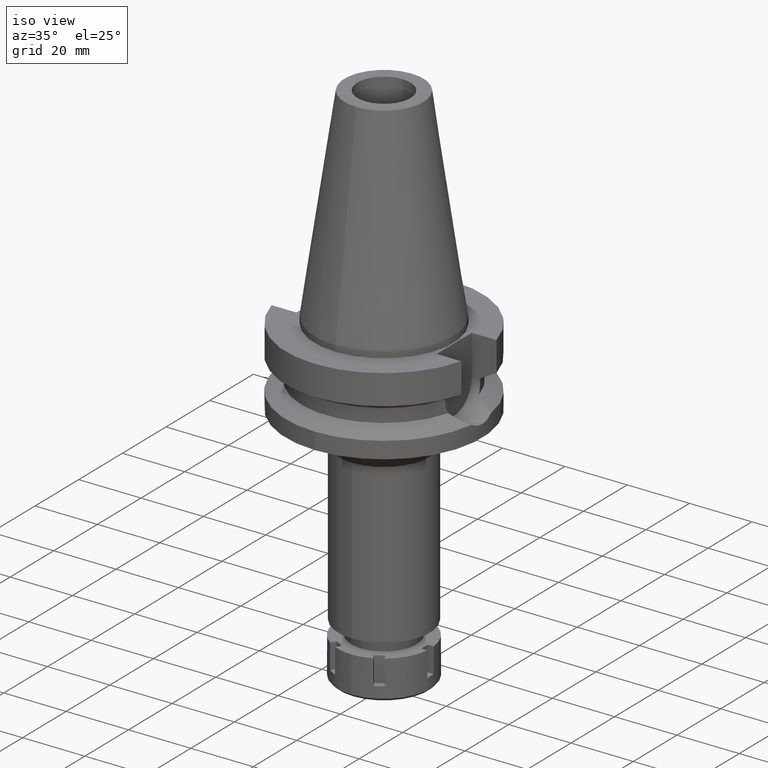
[diagram: clean part render]
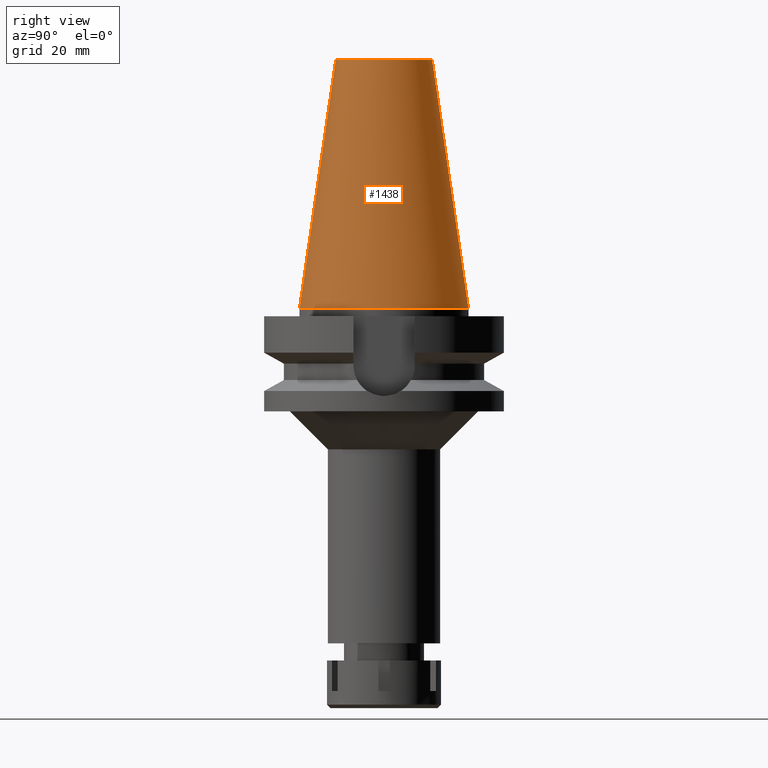
[diagram: tour spotlight — one face highlighted and labeled with its STEP entity id]
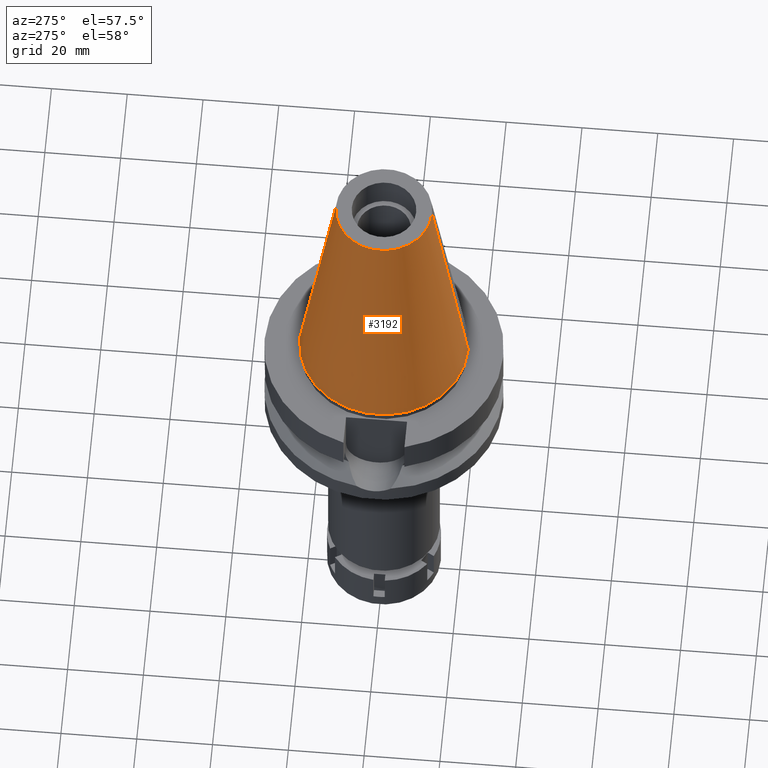
[diagram: tour spotlight — one face highlighted and labeled with its STEP entity id]
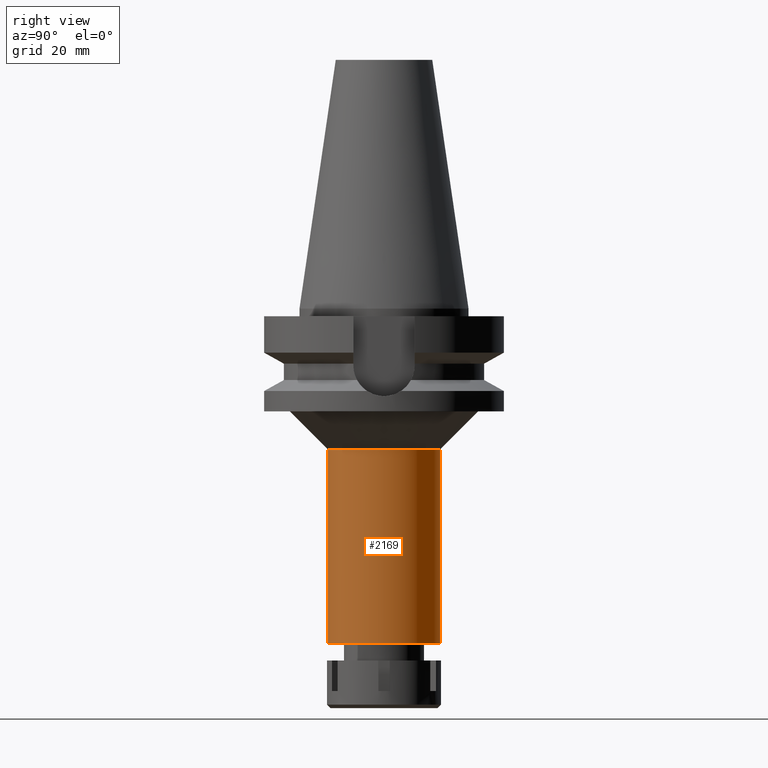
[diagram: tour spotlight — one face highlighted and labeled with its STEP entity id]
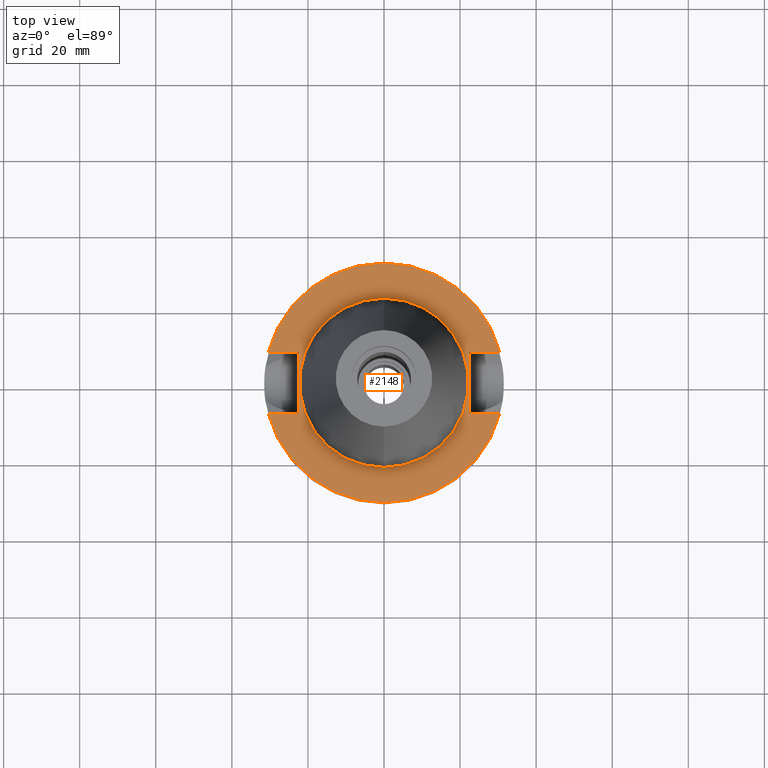
[diagram: tour spotlight — one face highlighted and labeled with its STEP entity id]
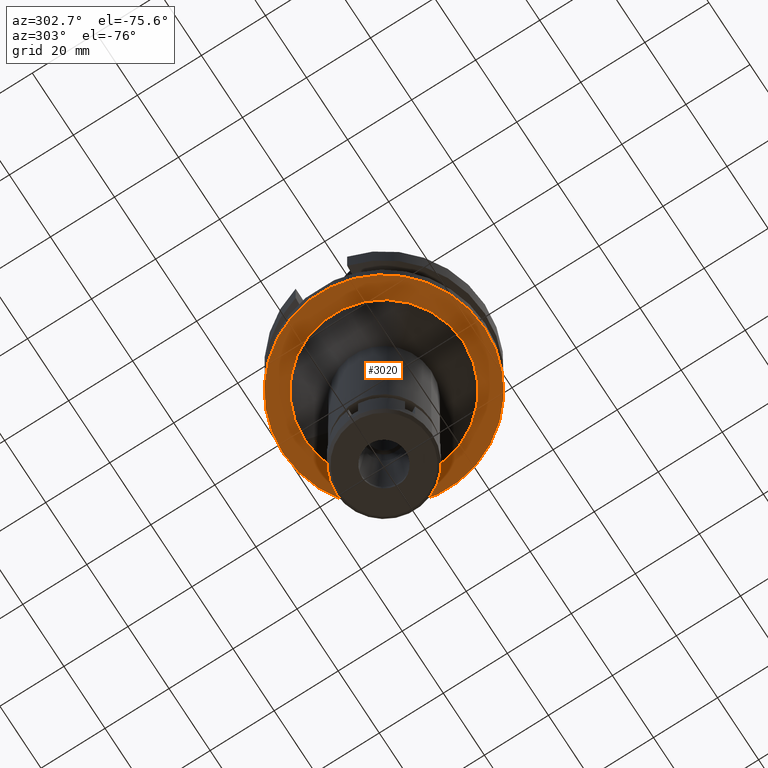
[diagram: tour spotlight — one face highlighted and labeled with its STEP entity id]
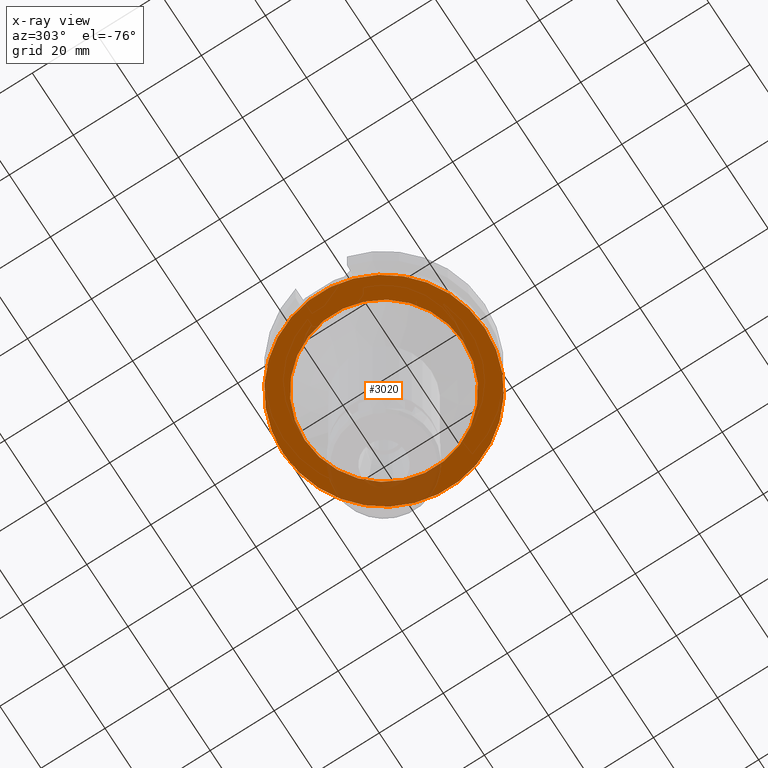
[diagram: x-ray of the same camera — body ghosted, this tour face saturated]
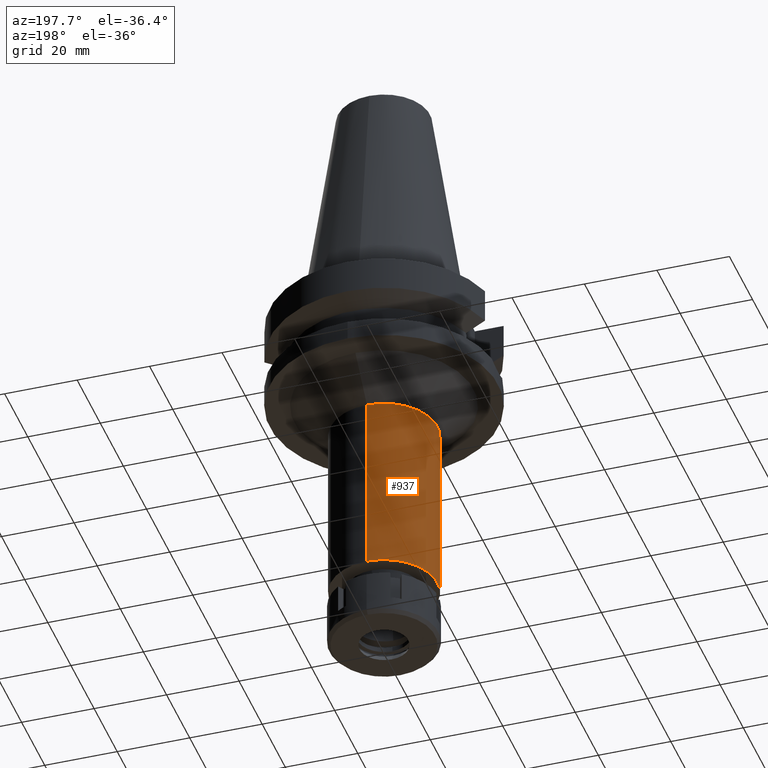
[diagram: tour spotlight — one face highlighted and labeled with its STEP entity id]
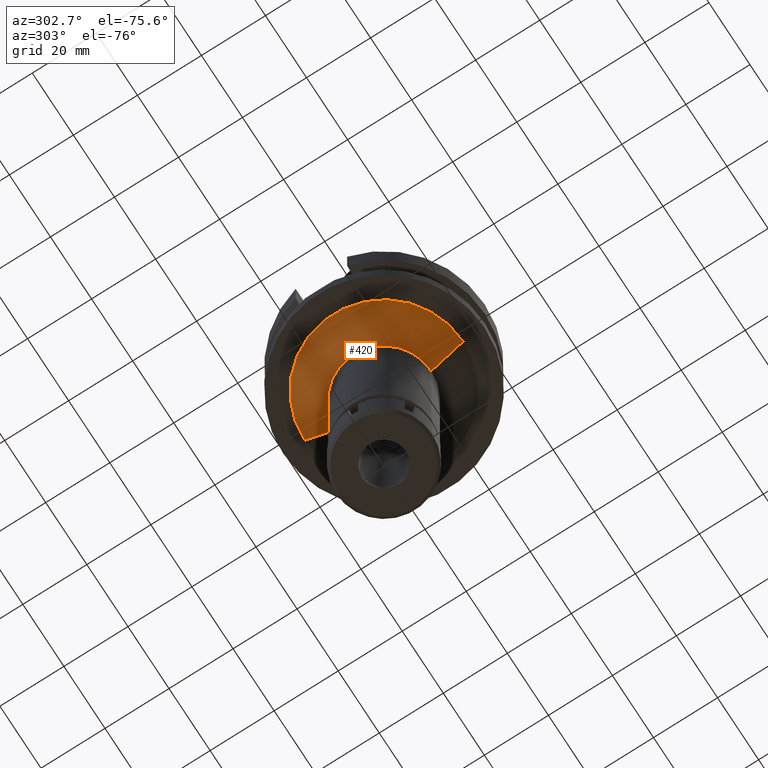
[diagram: tour spotlight — one face highlighted and labeled with its STEP entity id]
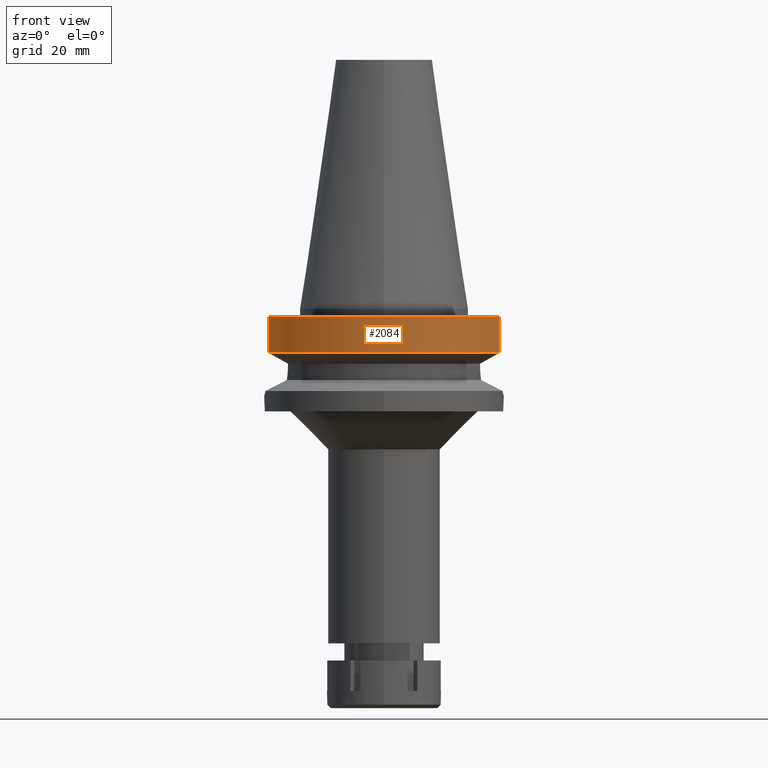
[diagram: tour spotlight — one face highlighted and labeled with its STEP entity id]
A machine part: a face-by-face anatomy tour. The part has 93 B-rep faces; the first image is the clean iso view, then the 8 largest visible faces are spotlighted one at a time (largest first), each with its STEP entity span.

Face 1 — right view, entity #1438. In plain terms, the highlighted conical surface has half-angle 8.297 deg.
Definition (entity closure, byte-faithful):
#77 = CARTESIAN_POINT ( 'NONE',  ( 0.0000000000000000000, 12.68766899429999917, 65.40000000000000568 ) ) ;
#409 = DIRECTION ( 'NONE',  ( 0.0000000000000000000, 0.1443043893539925626, -0.9895333461855498891 ) ) ;
#425 = VERTEX_POINT ( 'NONE', #1067 ) ;
#537 = CARTESIAN_POINT ( 'NONE',  ( 0.0000000000000000000, 1.625106302469000024E-14, 65.40000000000000568 ) ) ;
#538 = AXIS2_PLACEMENT_3D ( 'NONE', #3130, #2055, #3466 ) ;
#847 = ORIENTED_EDGE ( 'NONE', *, *, #1943, .F. ) ;
#861 = CARTESIAN_POINT ( 'NONE',  ( 0.0000000000000000000, -22.22500000000000142, 2.842170943039999687E-14 ) ) ;
#1067 = CARTESIAN_POINT ( 'NONE',  ( 0.0000000000000000000, -12.68766899429999917, 65.40000000000000568 ) ) ;
#1083 = DIRECTION ( 'NONE',  ( 0.0000000000000000000, 1.000000000000000000, 0.0000000000000000000 ) ) ;
#1163 = AXIS2_PLACEMENT_3D ( 'NONE', #1808, #3444, #2329 ) ;
#1210 = FACE_OUTER_BOUND ( 'NONE', #3404, .T. ) ;
#1438 = ADVANCED_FACE ( 'NONE', ( #1210 ), #2773, .T. ) ;
#1487 = VERTEX_POINT ( 'NONE', #77 ) ;
#1541 = CARTESIAN_POINT ( 'NONE',  ( 0.0000000000000000000, 12.68766899429999917, 65.40000000000000568 ) ) ;
#1557 = CARTESIAN_POINT ( 'NONE',  ( 0.0000000000000000000, -12.68766899429999917, 65.40000000000000568 ) ) ;
#1607 = EDGE_CURVE ( 'NONE', #425, #3102, #3582, .T. ) ;
#1643 = DIRECTION ( 'NONE',  ( 0.0000000000000000000, 0.0000000000000000000, -1.000000000000000000 ) ) ;
#1728 = CARTESIAN_POINT ( 'NONE',  ( 0.0000000000000000000, 22.22500000000000142, 8.526512829120999020E-14 ) ) ;
#1749 = EDGE_CURVE ( 'NONE', #1487, #425, #2125, .T. ) ;
#1808 = CARTESIAN_POINT ( 'NONE',  ( 0.0000000000000000000, 1.625106302469000024E-14, 2.842170943039999687E-14 ) ) ;
#1900 = DIRECTION ( 'NONE',  ( 0.0000000000000000000, -0.1443043893539925626, -0.9895333461855498891 ) ) ;
#1943 = EDGE_CURVE ( 'NONE', #3410, #3102, #2451, .T. ) ;
#1962 = EDGE_CURVE ( 'NONE', #1487, #3410, #2935, .T. ) ;
#2055 = DIRECTION ( 'NONE',  ( 0.0000000000000000000, 0.0000000000000000000, -1.000000000000000000 ) ) ;
#2125 = CIRCLE ( 'NONE', #3062, 12.68766899429999917 ) ;
#2329 = DIRECTION ( 'NONE',  ( 0.0000000000000000000, 1.000000000000000000, 0.0000000000000000000 ) ) ;
#2451 = CIRCLE ( 'NONE', #1163, 22.22500000000000142 ) ;
#2637 = ORIENTED_EDGE ( 'NONE', *, *, #1962, .F. ) ;
#2773 = CONICAL_SURFACE ( 'NONE', #538, 17.45633449714999941, 0.1448099680379422438 ) ;
#2867 = ORIENTED_EDGE ( 'NONE', *, *, #1607, .T. ) ;
#2935 = LINE ( 'NONE', #1541, #3521 ) ;
#3062 = AXIS2_PLACEMENT_3D ( 'NONE', #537, #1643, #1083 ) ;
#3102 = VERTEX_POINT ( 'NONE', #861 ) ;
#3130 = CARTESIAN_POINT ( 'NONE',  ( 0.0000000000000000000, 1.625106302469000024E-14, 32.70000000000000284 ) ) ;
#3197 = VECTOR ( 'NONE', #1900, 1000.000000000000114 ) ;
#3241 = ORIENTED_EDGE ( 'NONE', *, *, #1749, .T. ) ;
#3404 = EDGE_LOOP ( 'NONE', ( #3241, #2867, #847, #2637 ) ) ;
#3410 = VERTEX_POINT ( 'NONE', #1728 ) ;
#3444 = DIRECTION ( 'NONE',  ( 0.0000000000000000000, 0.0000000000000000000, -1.000000000000000000 ) ) ;
#3466 = DIRECTION ( 'NONE',  ( 0.0000000000000000000, -1.000000000000000000, 0.0000000000000000000 ) ) ;
#3521 = VECTOR ( 'NONE', #409, 1000.000000000000114 ) ;
#3582 = LINE ( 'NONE', #1557, #3197 ) ;

Face 2 — auxiliary view, entity #3192. In plain terms, the highlighted conical surface has half-angle 8.297 deg.
Definition (entity closure, byte-faithful):
#77 = CARTESIAN_POINT ( 'NONE',  ( 0.0000000000000000000, 12.68766899429999917, 65.40000000000000568 ) ) ;
#252 = CIRCLE ( 'NONE', #2716, 12.68766899429999917 ) ;
#401 = DIRECTION ( 'NONE',  ( 0.0000000000000000000, -1.000000000000000000, 0.0000000000000000000 ) ) ;
#409 = DIRECTION ( 'NONE',  ( 0.0000000000000000000, 0.1443043893539925626, -0.9895333461855498891 ) ) ;
#425 = VERTEX_POINT ( 'NONE', #1067 ) ;
#727 = DIRECTION ( 'NONE',  ( 0.0000000000000000000, 0.0000000000000000000, -1.000000000000000000 ) ) ;
#861 = CARTESIAN_POINT ( 'NONE',  ( 0.0000000000000000000, -22.22500000000000142, 2.842170943039999687E-14 ) ) ;
#1049 = DIRECTION ( 'NONE',  ( 0.0000000000000000000, -1.000000000000000000, 0.0000000000000000000 ) ) ;
#1067 = CARTESIAN_POINT ( 'NONE',  ( 0.0000000000000000000, -12.68766899429999917, 65.40000000000000568 ) ) ;
#1487 = VERTEX_POINT ( 'NONE', #77 ) ;
#1513 = EDGE_CURVE ( 'NONE', #425, #1487, #252, .T. ) ;
#1541 = CARTESIAN_POINT ( 'NONE',  ( 0.0000000000000000000, 12.68766899429999917, 65.40000000000000568 ) ) ;
#1557 = CARTESIAN_POINT ( 'NONE',  ( 0.0000000000000000000, -12.68766899429999917, 65.40000000000000568 ) ) ;
#1607 = EDGE_CURVE ( 'NONE', #425, #3102, #3582, .T. ) ;
#1728 = CARTESIAN_POINT ( 'NONE',  ( 0.0000000000000000000, 22.22500000000000142, 8.526512829120999020E-14 ) ) ;
#1798 = ORIENTED_EDGE ( 'NONE', *, *, #2510, .F. ) ;
#1859 = CARTESIAN_POINT ( 'NONE',  ( 0.0000000000000000000, 1.625106302469000024E-14, 65.40000000000000568 ) ) ;
#1900 = DIRECTION ( 'NONE',  ( 0.0000000000000000000, -0.1443043893539925626, -0.9895333461855498891 ) ) ;
#1962 = EDGE_CURVE ( 'NONE', #1487, #3410, #2935, .T. ) ;
#1982 = CIRCLE ( 'NONE', #2453, 22.22500000000000142 ) ;
#2214 = DIRECTION ( 'NONE',  ( 0.0000000000000000000, -1.000000000000000000, 0.0000000000000000000 ) ) ;
#2239 = DIRECTION ( 'NONE',  ( 0.0000000000000000000, 0.0000000000000000000, -1.000000000000000000 ) ) ;
#2376 = ORIENTED_EDGE ( 'NONE', *, *, #1962, .T. ) ;
#2453 = AXIS2_PLACEMENT_3D ( 'NONE', #2578, #2929, #401 ) ;
#2510 = EDGE_CURVE ( 'NONE', #3102, #3410, #1982, .T. ) ;
#2578 = CARTESIAN_POINT ( 'NONE',  ( 0.0000000000000000000, 1.625106302469000024E-14, 2.842170943039999687E-14 ) ) ;
#2716 = AXIS2_PLACEMENT_3D ( 'NONE', #1859, #727, #1049 ) ;
#2812 = FACE_OUTER_BOUND ( 'NONE', #3025, .T. ) ;
#2929 = DIRECTION ( 'NONE',  ( 0.0000000000000000000, 0.0000000000000000000, -1.000000000000000000 ) ) ;
#2935 = LINE ( 'NONE', #1541, #3521 ) ;
#2978 = ORIENTED_EDGE ( 'NONE', *, *, #1607, .F. ) ;
#3025 = EDGE_LOOP ( 'NONE', ( #1798, #2978, #3412, #2376 ) ) ;
#3102 = VERTEX_POINT ( 'NONE', #861 ) ;
#3192 = ADVANCED_FACE ( 'NONE', ( #2812 ), #3644, .T. ) ;
#3197 = VECTOR ( 'NONE', #1900, 1000.000000000000114 ) ;
#3346 = AXIS2_PLACEMENT_3D ( 'NONE', #3352, #2239, #2214 ) ;
#3352 = CARTESIAN_POINT ( 'NONE',  ( 0.0000000000000000000, 1.625106302469000024E-14, 32.70000000000000284 ) ) ;
#3410 = VERTEX_POINT ( 'NONE', #1728 ) ;
#3412 = ORIENTED_EDGE ( 'NONE', *, *, #1513, .T. ) ;
#3521 = VECTOR ( 'NONE', #409, 1000.000000000000114 ) ;
#3582 = LINE ( 'NONE', #1557, #3197 ) ;
#3644 = CONICAL_SURFACE ( 'NONE', #3346, 17.45633449714999941, 0.1448099680379422438 ) ;

Face 3 — right view, entity #2169. In plain terms, the highlighted cylindrical surface (partial cylindrical patch) has radius 14.75 mm, axis along (0, 0, -1).
Definition (entity closure, byte-faithful):
#13 = ORIENTED_EDGE ( 'NONE', *, *, #2728, .T. ) ;
#25 = DIRECTION ( 'NONE',  ( 0.0000000000000000000, 0.0000000000000000000, -1.000000000000000000 ) ) ;
#105 = CARTESIAN_POINT ( 'NONE',  ( 0.0000000000000000000, -14.75000000000000000, -88.00000000000000000 ) ) ;
#229 = VECTOR ( 'NONE', #1261, 1000.000000000000000 ) ;
#286 = VERTEX_POINT ( 'NONE', #1298 ) ;
#475 = AXIS2_PLACEMENT_3D ( 'NONE', #2490, #25, #3625 ) ;
#590 = DIRECTION ( 'NONE',  ( 0.0000000000000000000, 0.0000000000000000000, 1.000000000000000000 ) ) ;
#809 = AXIS2_PLACEMENT_3D ( 'NONE', #1122, #590, #3055 ) ;
#1073 = CARTESIAN_POINT ( 'NONE',  ( 0.0000000000000000000, -14.75000000000000000, -37.00000000000000000 ) ) ;
#1122 = CARTESIAN_POINT ( 'NONE',  ( 0.0000000000000000000, 2.125619449279999982E-14, -88.00000000000000000 ) ) ;
#1147 = ORIENTED_EDGE ( 'NONE', *, *, #3498, .F. ) ;
#1159 = CARTESIAN_POINT ( 'NONE',  ( 0.0000000000000000000, -14.75000000000000000, -37.00000000000000000 ) ) ;
#1261 = DIRECTION ( 'NONE',  ( 0.0000000000000000000, 0.0000000000000000000, -1.000000000000000000 ) ) ;
#1298 = CARTESIAN_POINT ( 'NONE',  ( 0.0000000000000000000, 14.75000000000000000, -88.00000000000000000 ) ) ;
#1323 = CARTESIAN_POINT ( 'NONE',  ( 0.0000000000000000000, 14.75000000000000000, -37.00000000000000000 ) ) ;
#1529 = CARTESIAN_POINT ( 'NONE',  ( 0.0000000000000000000, 14.75000000000000000, -37.00000000000000000 ) ) ;
#1778 = EDGE_CURVE ( 'NONE', #2044, #3167, #3368, .T. ) ;
#1848 = VERTEX_POINT ( 'NONE', #105 ) ;
#1856 = DIRECTION ( 'NONE',  ( 0.0000000000000000000, 0.0000000000000000000, -1.000000000000000000 ) ) ;
#1874 = CARTESIAN_POINT ( 'NONE',  ( 0.0000000000000000000, 2.125619449279999982E-14, 73.56999999999999318 ) ) ;
#2044 = VERTEX_POINT ( 'NONE', #1323 ) ;
#2137 = FACE_OUTER_BOUND ( 'NONE', #3215, .T. ) ;
#2140 = LINE ( 'NONE', #1529, #229 ) ;
#2169 = ADVANCED_FACE ( 'NONE', ( #2137 ), #3264, .T. ) ;
#2490 = CARTESIAN_POINT ( 'NONE',  ( 0.0000000000000000000, 0.0000000000000000000, -37.00000000000000000 ) ) ;
#2581 = EDGE_CURVE ( 'NONE', #1848, #286, #3283, .T. ) ;
#2638 = DIRECTION ( 'NONE',  ( 0.0000000000000000000, 0.0000000000000000000, -1.000000000000000000 ) ) ;
#2642 = VECTOR ( 'NONE', #2638, 1000.000000000000000 ) ;
#2728 = EDGE_CURVE ( 'NONE', #3167, #1848, #3478, .T. ) ;
#2981 = DIRECTION ( 'NONE',  ( 0.0000000000000000000, -1.000000000000000000, 0.0000000000000000000 ) ) ;
#3055 = DIRECTION ( 'NONE',  ( 0.0000000000000000000, -1.000000000000000000, 0.0000000000000000000 ) ) ;
#3099 = AXIS2_PLACEMENT_3D ( 'NONE', #1874, #1856, #2981 ) ;
#3167 = VERTEX_POINT ( 'NONE', #1073 ) ;
#3215 = EDGE_LOOP ( 'NONE', ( #3431, #13, #3386, #1147 ) ) ;
#3264 = CYLINDRICAL_SURFACE ( 'NONE', #3099, 14.75000000000000000 ) ;
#3283 = CIRCLE ( 'NONE', #809, 14.75000000000000000 ) ;
#3368 = CIRCLE ( 'NONE', #475, 14.75000000000000000 ) ;
#3386 = ORIENTED_EDGE ( 'NONE', *, *, #2581, .T. ) ;
#3431 = ORIENTED_EDGE ( 'NONE', *, *, #1778, .T. ) ;
#3478 = LINE ( 'NONE', #1159, #2642 ) ;
#3498 = EDGE_CURVE ( 'NONE', #2044, #286, #2140, .T. ) ;
#3625 = DIRECTION ( 'NONE',  ( 0.0000000000000000000, 1.000000000000000000, 0.0000000000000000000 ) ) ;

Face 4 — top view, entity #2148. In plain terms, the highlighted planar face has unit normal (0, 0, -1).
Definition (entity closure, byte-faithful):
#69 = EDGE_CURVE ( 'NONE', #339, #751, #602, .T. ) ;
#73 = AXIS2_PLACEMENT_3D ( 'NONE', #1686, #1826, #2610 ) ;
#122 = CARTESIAN_POINT ( 'NONE',  ( 0.0000000000000000000, 22.22500000000000142, -2.000000000000000000 ) ) ;
#257 = CARTESIAN_POINT ( 'NONE',  ( -22.50000000000000000, -8.050000000000000711, -2.000000000000000000 ) ) ;
#262 = VERTEX_POINT ( 'NONE', #1224 ) ;
#299 = LINE ( 'NONE', #807, #348 ) ;
#318 = VERTEX_POINT ( 'NONE', #634 ) ;
#335 = EDGE_CURVE ( 'NONE', #1905, #2165, #1591, .T. ) ;
#339 = VERTEX_POINT ( 'NONE', #1144 ) ;
#348 = VECTOR ( 'NONE', #1065, 1000.000000000000000 ) ;
#388 = ORIENTED_EDGE ( 'NONE', *, *, #69, .T. ) ;
#426 = CARTESIAN_POINT ( 'NONE',  ( -30.45402272279000044, -8.050000000000000711, -2.000000000000000000 ) ) ;
#454 = FACE_OUTER_BOUND ( 'NONE', #1036, .T. ) ;
#483 = DIRECTION ( 'NONE',  ( 1.000000000000000000, -3.506251283225999947E-14, 0.0000000000000000000 ) ) ;
#543 = DIRECTION ( 'NONE',  ( 0.0000000000000000000, 1.000000000000000000, 0.0000000000000000000 ) ) ;
#602 = LINE ( 'NONE', #1729, #2766 ) ;
#607 = ORIENTED_EDGE ( 'NONE', *, *, #3151, .T. ) ;
#634 = CARTESIAN_POINT ( 'NONE',  ( 22.50000000000000000, -8.050000000000000711, -2.000000000000000000 ) ) ;
#676 = CARTESIAN_POINT ( 'NONE',  ( -30.45402272279000044, 8.050000000000000711, -2.000000000000000000 ) ) ;
#707 = EDGE_CURVE ( 'NONE', #318, #3541, #752, .T. ) ;
#711 = EDGE_CURVE ( 'NONE', #2519, #3454, #829, .T. ) ;
#724 = PLANE ( 'NONE',  #3471 ) ;
#734 = DIRECTION ( 'NONE',  ( 0.0000000000000000000, 0.0000000000000000000, -1.000000000000000000 ) ) ;
#751 = VERTEX_POINT ( 'NONE', #426 ) ;
#752 = LINE ( 'NONE', #1321, #2419 ) ;
#754 = CARTESIAN_POINT ( 'NONE',  ( 0.0000000000000000000, 1.200153863163999924E-14, -2.000000000000000000 ) ) ;
#807 = CARTESIAN_POINT ( 'NONE',  ( 22.50000000000000000, 8.050000000000000711, -2.000000000000000000 ) ) ;
#829 = CIRCLE ( 'NONE', #2535, 31.50000000000000000 ) ;
#831 = DIRECTION ( 'NONE',  ( -1.000000000000000000, -3.550916904668000126E-14, 0.0000000000000000000 ) ) ;
#860 = ORIENTED_EDGE ( 'NONE', *, *, #711, .F. ) ;
#872 = CARTESIAN_POINT ( 'NONE',  ( 0.0000000000000000000, 2.125619449279999982E-14, -2.000000000000000000 ) ) ;
#991 = ORIENTED_EDGE ( 'NONE', *, *, #1726, .F. ) ;
#1014 = CARTESIAN_POINT ( 'NONE',  ( 0.0000000000000000000, -22.22500000000000142, -2.000000000000000000 ) ) ;
#1028 = DIRECTION ( 'NONE',  ( 0.0000000000000000000, 1.000000000000000000, 0.0000000000000000000 ) ) ;
#1036 = EDGE_LOOP ( 'NONE', ( #388, #1038, #3065, #2335, #607, #860, #1748, #3110 ) ) ;
#1038 = ORIENTED_EDGE ( 'NONE', *, *, #1228, .F. ) ;
#1065 = DIRECTION ( 'NONE',  ( 0.0000000000000000000, -1.000000000000000000, 0.0000000000000000000 ) ) ;
#1091 = CARTESIAN_POINT ( 'NONE',  ( 22.50000000000000000, 8.050000000000000711, -2.000000000000000000 ) ) ;
#1098 = CARTESIAN_POINT ( 'NONE',  ( -22.50000000000000000, 8.050000000000000711, -2.000000000000000000 ) ) ;
#1144 = CARTESIAN_POINT ( 'NONE',  ( -22.50000000000000000, -8.050000000000000711, -2.000000000000000000 ) ) ;
#1224 = CARTESIAN_POINT ( 'NONE',  ( -22.50000000000000000, 8.050000000000000711, -2.000000000000000000 ) ) ;
#1228 = EDGE_CURVE ( 'NONE', #3541, #751, #1246, .T. ) ;
#1246 = CIRCLE ( 'NONE', #2608, 31.50000000000000000 ) ;
#1320 = ORIENTED_EDGE ( 'NONE', *, *, #335, .F. ) ;
#1321 = CARTESIAN_POINT ( 'NONE',  ( 22.50000000000000000, -8.050000000000000711, -2.000000000000000000 ) ) ;
#1591 = CIRCLE ( 'NONE', #73, 22.22500000000000142 ) ;
#1686 = CARTESIAN_POINT ( 'NONE',  ( 0.0000000000000000000, 2.125619449279999982E-14, -2.000000000000000000 ) ) ;
#1697 = VECTOR ( 'NONE', #543, 1000.000000000000000 ) ;
#1720 = DIRECTION ( 'NONE',  ( 0.0000000000000000000, -1.000000000000000000, 0.0000000000000000000 ) ) ;
#1726 = EDGE_CURVE ( 'NONE', #2165, #1905, #1833, .T. ) ;
#1729 = CARTESIAN_POINT ( 'NONE',  ( -22.50000000000000000, -8.050000000000000711, -2.000000000000000000 ) ) ;
#1748 = ORIENTED_EDGE ( 'NONE', *, *, #2689, .F. ) ;
#1801 = VERTEX_POINT ( 'NONE', #3059 ) ;
#1826 = DIRECTION ( 'NONE',  ( 0.0000000000000000000, 0.0000000000000000000, 1.000000000000000000 ) ) ;
#1833 = CIRCLE ( 'NONE', #2310, 22.22500000000000142 ) ;
#1842 = DIRECTION ( 'NONE',  ( 0.0000000000000000000, 0.0000000000000000000, -1.000000000000000000 ) ) ;
#1850 = DIRECTION ( 'NONE',  ( 0.0000000000000000000, -1.000000000000000000, 0.0000000000000000000 ) ) ;
#1905 = VERTEX_POINT ( 'NONE', #122 ) ;
#1956 = EDGE_LOOP ( 'NONE', ( #1320, #991 ) ) ;
#2097 = CARTESIAN_POINT ( 'NONE',  ( 0.0000000000000000000, 2.125619449279999982E-14, -2.000000000000000000 ) ) ;
#2108 = CARTESIAN_POINT ( 'NONE',  ( 30.45402272279000044, -8.050000000000000711, -2.000000000000000000 ) ) ;
#2148 = ADVANCED_FACE ( 'NONE', ( #454, #3514 ), #724, .F. ) ;
#2165 = VERTEX_POINT ( 'NONE', #1014 ) ;
#2226 = DIRECTION ( 'NONE',  ( 0.0000000000000000000, 0.0000000000000000000, 1.000000000000000000 ) ) ;
#2310 = AXIS2_PLACEMENT_3D ( 'NONE', #872, #2226, #1720 ) ;
#2335 = ORIENTED_EDGE ( 'NONE', *, *, #2631, .F. ) ;
#2419 = VECTOR ( 'NONE', #2934, 1000.000000000000000 ) ;
#2426 = CARTESIAN_POINT ( 'NONE',  ( 30.45402272279000044, 8.050000000000000711, -2.000000000000000000 ) ) ;
#2519 = VERTEX_POINT ( 'NONE', #676 ) ;
#2535 = AXIS2_PLACEMENT_3D ( 'NONE', #2097, #3561, #1028 ) ;
#2608 = AXIS2_PLACEMENT_3D ( 'NONE', #3257, #734, #1850 ) ;
#2610 = DIRECTION ( 'NONE',  ( 0.0000000000000000000, 1.000000000000000000, 0.0000000000000000000 ) ) ;
#2631 = EDGE_CURVE ( 'NONE', #1801, #318, #299, .T. ) ;
#2688 = DIRECTION ( 'NONE',  ( 0.0000000000000000000, -1.000000000000000000, 0.0000000000000000000 ) ) ;
#2689 = EDGE_CURVE ( 'NONE', #262, #2519, #3637, .T. ) ;
#2766 = VECTOR ( 'NONE', #2856, 1000.000000000000000 ) ;
#2856 = DIRECTION ( 'NONE',  ( -1.000000000000000000, 3.550916904668000126E-14, 0.0000000000000000000 ) ) ;
#2934 = DIRECTION ( 'NONE',  ( 1.000000000000000000, 3.573249715389999860E-14, 0.0000000000000000000 ) ) ;
#3059 = CARTESIAN_POINT ( 'NONE',  ( 22.50000000000000000, 8.050000000000000711, -2.000000000000000000 ) ) ;
#3065 = ORIENTED_EDGE ( 'NONE', *, *, #707, .F. ) ;
#3066 = LINE ( 'NONE', #257, #1697 ) ;
#3082 = EDGE_CURVE ( 'NONE', #339, #262, #3066, .T. ) ;
#3110 = ORIENTED_EDGE ( 'NONE', *, *, #3082, .F. ) ;
#3151 = EDGE_CURVE ( 'NONE', #1801, #3454, #3630, .T. ) ;
#3257 = CARTESIAN_POINT ( 'NONE',  ( 0.0000000000000000000, 2.125619449279999982E-14, -2.000000000000000000 ) ) ;
#3405 = VECTOR ( 'NONE', #831, 1000.000000000000000 ) ;
#3407 = VECTOR ( 'NONE', #483, 1000.000000000000000 ) ;
#3454 = VERTEX_POINT ( 'NONE', #2426 ) ;
#3471 = AXIS2_PLACEMENT_3D ( 'NONE', #754, #1842, #2688 ) ;
#3514 = FACE_BOUND ( 'NONE', #1956, .T. ) ;
#3541 = VERTEX_POINT ( 'NONE', #2108 ) ;
#3561 = DIRECTION ( 'NONE',  ( 0.0000000000000000000, 0.0000000000000000000, -1.000000000000000000 ) ) ;
#3630 = LINE ( 'NONE', #1091, #3407 ) ;
#3637 = LINE ( 'NONE', #1098, #3405 ) ;

Face 5 — auxiliary view, entity #3020. An x-ray twin of the same camera follows (body ghosted, this face saturated) — the face is partly hidden behind the body. In plain terms, the highlighted planar face has unit normal (0, 0, -1).
Definition (entity closure, byte-faithful):
#32 = VERTEX_POINT ( 'NONE', #621 ) ;
#184 = FACE_OUTER_BOUND ( 'NONE', #3455, .T. ) ;
#414 = AXIS2_PLACEMENT_3D ( 'NONE', #3481, #667, #1242 ) ;
#471 = DIRECTION ( 'NONE',  ( 0.0000000000000000000, -1.000000000000000000, 0.0000000000000000000 ) ) ;
#577 = DIRECTION ( 'NONE',  ( 0.0000000000000000000, 0.0000000000000000000, 1.000000000000000000 ) ) ;
#588 = ORIENTED_EDGE ( 'NONE', *, *, #1411, .F. ) ;
#615 = EDGE_CURVE ( 'NONE', #32, #2496, #1428, .T. ) ;
#621 = CARTESIAN_POINT ( 'NONE',  ( 0.0000000000000000000, 24.75000000000000000, -27.00000000000000000 ) ) ;
#667 = DIRECTION ( 'NONE',  ( 0.0000000000000000000, 0.0000000000000000000, -1.000000000000000000 ) ) ;
#736 = CARTESIAN_POINT ( 'NONE',  ( 0.0000000000000000000, 0.0000000000000000000, -27.00000000000000000 ) ) ;
#768 = EDGE_LOOP ( 'NONE', ( #1970, #3519 ) ) ;
#769 = CIRCLE ( 'NONE', #3306, 31.50000000000000000 ) ;
#795 = EDGE_CURVE ( 'NONE', #2496, #32, #3545, .T. ) ;
#886 = VERTEX_POINT ( 'NONE', #1094 ) ;
#974 = FACE_BOUND ( 'NONE', #768, .T. ) ;
#1094 = CARTESIAN_POINT ( 'NONE',  ( 0.0000000000000000000, 31.50000000000000000, -27.00000000000000000 ) ) ;
#1216 = CARTESIAN_POINT ( 'NONE',  ( 0.0000000000000000000, -24.75000000000000000, -27.00000000000000000 ) ) ;
#1242 = DIRECTION ( 'NONE',  ( 0.0000000000000000000, 1.000000000000000000, 0.0000000000000000000 ) ) ;
#1411 = EDGE_CURVE ( 'NONE', #886, #2075, #769, .T. ) ;
#1428 = CIRCLE ( 'NONE', #414, 24.75000000000000000 ) ;
#1434 = CARTESIAN_POINT ( 'NONE',  ( 0.0000000000000000000, 2.125619449279999982E-14, -27.00000000000000000 ) ) ;
#1825 = CARTESIAN_POINT ( 'NONE',  ( 0.0000000000000000000, -31.50000000000000000, -27.00000000000000000 ) ) ;
#1847 = EDGE_CURVE ( 'NONE', #2075, #886, #2210, .T. ) ;
#1851 = DIRECTION ( 'NONE',  ( 0.0000000000000000000, -1.000000000000000000, 0.0000000000000000000 ) ) ;
#1872 = DIRECTION ( 'NONE',  ( 0.0000000000000000000, 0.0000000000000000000, -1.000000000000000000 ) ) ;
#1970 = ORIENTED_EDGE ( 'NONE', *, *, #615, .F. ) ;
#2075 = VERTEX_POINT ( 'NONE', #1825 ) ;
#2083 = DIRECTION ( 'NONE',  ( 0.0000000000000000000, -1.000000000000000000, 0.0000000000000000000 ) ) ;
#2132 = PLANE ( 'NONE',  #2748 ) ;
#2210 = CIRCLE ( 'NONE', #2744, 31.50000000000000000 ) ;
#2496 = VERTEX_POINT ( 'NONE', #1216 ) ;
#2618 = DIRECTION ( 'NONE',  ( 0.0000000000000000000, 1.000000000000000000, 0.0000000000000000000 ) ) ;
#2744 = AXIS2_PLACEMENT_3D ( 'NONE', #1434, #2845, #2083 ) ;
#2748 = AXIS2_PLACEMENT_3D ( 'NONE', #736, #3221, #1851 ) ;
#2755 = ORIENTED_EDGE ( 'NONE', *, *, #1847, .F. ) ;
#2845 = DIRECTION ( 'NONE',  ( 0.0000000000000000000, 0.0000000000000000000, 1.000000000000000000 ) ) ;
#3005 = AXIS2_PLACEMENT_3D ( 'NONE', #3247, #1872, #471 ) ;
#3020 = ADVANCED_FACE ( 'NONE', ( #184, #974 ), #2132, .T. ) ;
#3100 = CARTESIAN_POINT ( 'NONE',  ( 0.0000000000000000000, 2.125619449279999982E-14, -27.00000000000000000 ) ) ;
#3221 = DIRECTION ( 'NONE',  ( 0.0000000000000000000, 0.0000000000000000000, -1.000000000000000000 ) ) ;
#3247 = CARTESIAN_POINT ( 'NONE',  ( 0.0000000000000000000, 0.0000000000000000000, -27.00000000000000000 ) ) ;
#3306 = AXIS2_PLACEMENT_3D ( 'NONE', #3100, #577, #2618 ) ;
#3455 = EDGE_LOOP ( 'NONE', ( #588, #2755 ) ) ;
#3481 = CARTESIAN_POINT ( 'NONE',  ( 0.0000000000000000000, 0.0000000000000000000, -27.00000000000000000 ) ) ;
#3519 = ORIENTED_EDGE ( 'NONE', *, *, #795, .F. ) ;
#3545 = CIRCLE ( 'NONE', #3005, 24.75000000000000000 ) ;

Face 6 — auxiliary view, entity #937. In plain terms, the highlighted cylindrical surface (partial cylindrical patch) has radius 14.75 mm, axis along (0, 0, -1).
Definition (entity closure, byte-faithful):
#20 = EDGE_LOOP ( 'NONE', ( #781, #1652, #289, #2796 ) ) ;
#105 = CARTESIAN_POINT ( 'NONE',  ( 0.0000000000000000000, -14.75000000000000000, -88.00000000000000000 ) ) ;
#229 = VECTOR ( 'NONE', #1261, 1000.000000000000000 ) ;
#286 = VERTEX_POINT ( 'NONE', #1298 ) ;
#289 = ORIENTED_EDGE ( 'NONE', *, *, #3292, .T. ) ;
#431 = CARTESIAN_POINT ( 'NONE',  ( 0.0000000000000000000, 2.125619449279999982E-14, -88.00000000000000000 ) ) ;
#515 = CIRCLE ( 'NONE', #1581, 14.75000000000000000 ) ;
#781 = ORIENTED_EDGE ( 'NONE', *, *, #3465, .T. ) ;
#883 = CARTESIAN_POINT ( 'NONE',  ( 0.0000000000000000000, 0.0000000000000000000, -37.00000000000000000 ) ) ;
#937 = ADVANCED_FACE ( 'NONE', ( #1975 ), #2859, .T. ) ;
#939 = DIRECTION ( 'NONE',  ( 0.0000000000000000000, -1.000000000000000000, 0.0000000000000000000 ) ) ;
#1004 = DIRECTION ( 'NONE',  ( 0.0000000000000000000, 1.000000000000000000, 0.0000000000000000000 ) ) ;
#1073 = CARTESIAN_POINT ( 'NONE',  ( 0.0000000000000000000, -14.75000000000000000, -37.00000000000000000 ) ) ;
#1159 = CARTESIAN_POINT ( 'NONE',  ( 0.0000000000000000000, -14.75000000000000000, -37.00000000000000000 ) ) ;
#1261 = DIRECTION ( 'NONE',  ( 0.0000000000000000000, 0.0000000000000000000, -1.000000000000000000 ) ) ;
#1298 = CARTESIAN_POINT ( 'NONE',  ( 0.0000000000000000000, 14.75000000000000000, -88.00000000000000000 ) ) ;
#1323 = CARTESIAN_POINT ( 'NONE',  ( 0.0000000000000000000, 14.75000000000000000, -37.00000000000000000 ) ) ;
#1359 = AXIS2_PLACEMENT_3D ( 'NONE', #1732, #1751, #939 ) ;
#1529 = CARTESIAN_POINT ( 'NONE',  ( 0.0000000000000000000, 14.75000000000000000, -37.00000000000000000 ) ) ;
#1581 = AXIS2_PLACEMENT_3D ( 'NONE', #431, #2074, #1004 ) ;
#1652 = ORIENTED_EDGE ( 'NONE', *, *, #2728, .F. ) ;
#1732 = CARTESIAN_POINT ( 'NONE',  ( 0.0000000000000000000, 2.125619449279999982E-14, 73.56999999999999318 ) ) ;
#1751 = DIRECTION ( 'NONE',  ( 0.0000000000000000000, 0.0000000000000000000, -1.000000000000000000 ) ) ;
#1848 = VERTEX_POINT ( 'NONE', #105 ) ;
#1975 = FACE_OUTER_BOUND ( 'NONE', #20, .T. ) ;
#2044 = VERTEX_POINT ( 'NONE', #1323 ) ;
#2074 = DIRECTION ( 'NONE',  ( 0.0000000000000000000, 0.0000000000000000000, 1.000000000000000000 ) ) ;
#2140 = LINE ( 'NONE', #1529, #229 ) ;
#2160 = CIRCLE ( 'NONE', #2646, 14.75000000000000000 ) ;
#2356 = DIRECTION ( 'NONE',  ( 0.0000000000000000000, 0.0000000000000000000, -1.000000000000000000 ) ) ;
#2638 = DIRECTION ( 'NONE',  ( 0.0000000000000000000, 0.0000000000000000000, -1.000000000000000000 ) ) ;
#2642 = VECTOR ( 'NONE', #2638, 1000.000000000000000 ) ;
#2646 = AXIS2_PLACEMENT_3D ( 'NONE', #883, #2356, #2894 ) ;
#2728 = EDGE_CURVE ( 'NONE', #3167, #1848, #3478, .T. ) ;
#2796 = ORIENTED_EDGE ( 'NONE', *, *, #3498, .T. ) ;
#2859 = CYLINDRICAL_SURFACE ( 'NONE', #1359, 14.75000000000000000 ) ;
#2894 = DIRECTION ( 'NONE',  ( 0.0000000000000000000, -1.000000000000000000, 0.0000000000000000000 ) ) ;
#3167 = VERTEX_POINT ( 'NONE', #1073 ) ;
#3292 = EDGE_CURVE ( 'NONE', #3167, #2044, #2160, .T. ) ;
#3465 = EDGE_CURVE ( 'NONE', #286, #1848, #515, .T. ) ;
#3478 = LINE ( 'NONE', #1159, #2642 ) ;
#3498 = EDGE_CURVE ( 'NONE', #2044, #286, #2140, .T. ) ;

Face 7 — auxiliary view, entity #420. In plain terms, the highlighted conical surface has half-angle 45 deg.
Definition (entity closure, byte-faithful):
#4 = DIRECTION ( 'NONE',  ( 0.0000000000000000000, 0.0000000000000000000, 1.000000000000000000 ) ) ;
#32 = VERTEX_POINT ( 'NONE', #621 ) ;
#420 = ADVANCED_FACE ( 'NONE', ( #1664 ), #3242, .T. ) ;
#471 = DIRECTION ( 'NONE',  ( 0.0000000000000000000, -1.000000000000000000, 0.0000000000000000000 ) ) ;
#554 = CARTESIAN_POINT ( 'NONE',  ( 0.0000000000000000000, -24.75000000000000000, -27.00000000000000000 ) ) ;
#621 = CARTESIAN_POINT ( 'NONE',  ( 0.0000000000000000000, 24.75000000000000000, -27.00000000000000000 ) ) ;
#646 = ORIENTED_EDGE ( 'NONE', *, *, #3446, .T. ) ;
#710 = AXIS2_PLACEMENT_3D ( 'NONE', #1642, #4, #1349 ) ;
#779 = ORIENTED_EDGE ( 'NONE', *, *, #3292, .F. ) ;
#795 = EDGE_CURVE ( 'NONE', #2496, #32, #3545, .T. ) ;
#836 = VECTOR ( 'NONE', #2552, 1000.000000000000114 ) ;
#883 = CARTESIAN_POINT ( 'NONE',  ( 0.0000000000000000000, 0.0000000000000000000, -37.00000000000000000 ) ) ;
#921 = EDGE_LOOP ( 'NONE', ( #779, #2319, #2902, #646 ) ) ;
#1073 = CARTESIAN_POINT ( 'NONE',  ( 0.0000000000000000000, -14.75000000000000000, -37.00000000000000000 ) ) ;
#1216 = CARTESIAN_POINT ( 'NONE',  ( 0.0000000000000000000, -24.75000000000000000, -27.00000000000000000 ) ) ;
#1323 = CARTESIAN_POINT ( 'NONE',  ( 0.0000000000000000000, 14.75000000000000000, -37.00000000000000000 ) ) ;
#1349 = DIRECTION ( 'NONE',  ( 0.0000000000000000000, 1.000000000000000000, 0.0000000000000000000 ) ) ;
#1559 = DIRECTION ( 'NONE',  ( 0.0000000000000000000, -0.7071067811865474617, -0.7071067811865474617 ) ) ;
#1642 = CARTESIAN_POINT ( 'NONE',  ( 0.0000000000000000000, 0.0000000000000000000, -32.00000000000000000 ) ) ;
#1664 = FACE_OUTER_BOUND ( 'NONE', #921, .T. ) ;
#1775 = EDGE_CURVE ( 'NONE', #2496, #3167, #1985, .T. ) ;
#1861 = LINE ( 'NONE', #3506, #2753 ) ;
#1872 = DIRECTION ( 'NONE',  ( 0.0000000000000000000, 0.0000000000000000000, -1.000000000000000000 ) ) ;
#1985 = LINE ( 'NONE', #554, #836 ) ;
#2044 = VERTEX_POINT ( 'NONE', #1323 ) ;
#2160 = CIRCLE ( 'NONE', #2646, 14.75000000000000000 ) ;
#2319 = ORIENTED_EDGE ( 'NONE', *, *, #1775, .F. ) ;
#2356 = DIRECTION ( 'NONE',  ( 0.0000000000000000000, 0.0000000000000000000, -1.000000000000000000 ) ) ;
#2496 = VERTEX_POINT ( 'NONE', #1216 ) ;
#2552 = DIRECTION ( 'NONE',  ( 0.0000000000000000000, 0.7071067811865474617, -0.7071067811865474617 ) ) ;
#2646 = AXIS2_PLACEMENT_3D ( 'NONE', #883, #2356, #2894 ) ;
#2753 = VECTOR ( 'NONE', #1559, 1000.000000000000114 ) ;
#2894 = DIRECTION ( 'NONE',  ( 0.0000000000000000000, -1.000000000000000000, 0.0000000000000000000 ) ) ;
#2902 = ORIENTED_EDGE ( 'NONE', *, *, #795, .T. ) ;
#3005 = AXIS2_PLACEMENT_3D ( 'NONE', #3247, #1872, #471 ) ;
#3167 = VERTEX_POINT ( 'NONE', #1073 ) ;
#3242 = CONICAL_SURFACE ( 'NONE', #710, 19.75000000000000000, 0.7853981633972997312 ) ;
#3247 = CARTESIAN_POINT ( 'NONE',  ( 0.0000000000000000000, 0.0000000000000000000, -27.00000000000000000 ) ) ;
#3292 = EDGE_CURVE ( 'NONE', #3167, #2044, #2160, .T. ) ;
#3446 = EDGE_CURVE ( 'NONE', #32, #2044, #1861, .T. ) ;
#3506 = CARTESIAN_POINT ( 'NONE',  ( 0.0000000000000000000, 24.75000000000000000, -27.00000000000000000 ) ) ;
#3545 = CIRCLE ( 'NONE', #3005, 24.75000000000000000 ) ;

Face 8 — front view, entity #2084. In plain terms, the highlighted cylindrical surface (partial cylindrical patch) has radius 31.5 mm, axis along (0, 0, -1).
Definition (entity closure, byte-faithful):
#48 = AXIS2_PLACEMENT_3D ( 'NONE', #1554, #1289, #2951 ) ;
#154 = FACE_OUTER_BOUND ( 'NONE', #782, .T. ) ;
#275 = DIRECTION ( 'NONE',  ( 0.0000000000000000000, 0.0000000000000000000, 1.000000000000000000 ) ) ;
#426 = CARTESIAN_POINT ( 'NONE',  ( -30.45402272279000044, -8.050000000000000711, -2.000000000000000000 ) ) ;
#734 = DIRECTION ( 'NONE',  ( 0.0000000000000000000, 0.0000000000000000000, -1.000000000000000000 ) ) ;
#751 = VERTEX_POINT ( 'NONE', #426 ) ;
#782 = EDGE_LOOP ( 'NONE', ( #1535, #3336, #1211, #843 ) ) ;
#843 = ORIENTED_EDGE ( 'NONE', *, *, #1228, .T. ) ;
#844 = EDGE_CURVE ( 'NONE', #1869, #751, #1399, .T. ) ;
#918 = EDGE_CURVE ( 'NONE', #1869, #2186, #1005, .T. ) ;
#1005 = CIRCLE ( 'NONE', #3608, 31.50000000000000000 ) ;
#1041 = EDGE_CURVE ( 'NONE', #3541, #2186, #3137, .T. ) ;
#1177 = DIRECTION ( 'NONE',  ( -1.145515121391999343E-07, -4.333601971264996961E-07, -0.9999999999998995248 ) ) ;
#1211 = ORIENTED_EDGE ( 'NONE', *, *, #1041, .F. ) ;
#1228 = EDGE_CURVE ( 'NONE', #3541, #751, #1246, .T. ) ;
#1246 = CIRCLE ( 'NONE', #2608, 31.50000000000000000 ) ;
#1289 = DIRECTION ( 'NONE',  ( 0.0000000000000000000, 0.0000000000000000000, -1.000000000000000000 ) ) ;
#1399 = LINE ( 'NONE', #2465, #2009 ) ;
#1535 = ORIENTED_EDGE ( 'NONE', *, *, #844, .F. ) ;
#1554 = CARTESIAN_POINT ( 'NONE',  ( 0.0000000000000000000, 2.125619449279999982E-14, 73.56999999999999318 ) ) ;
#1584 = CARTESIAN_POINT ( 'NONE',  ( 30.45402272279000044, -8.049999999999000622, -11.56550565266999975 ) ) ;
#1689 = CARTESIAN_POINT ( 'NONE',  ( 0.0000000000000000000, 1.065333950388000029E-14, -11.56550565266999975 ) ) ;
#1788 = CARTESIAN_POINT ( 'NONE',  ( 30.45402272279000044, -8.050000000000000711, -2.000000000000000000 ) ) ;
#1850 = DIRECTION ( 'NONE',  ( 0.0000000000000000000, -1.000000000000000000, 0.0000000000000000000 ) ) ;
#1869 = VERTEX_POINT ( 'NONE', #2049 ) ;
#2009 = VECTOR ( 'NONE', #2483, 1000.000000000000227 ) ;
#2049 = CARTESIAN_POINT ( 'NONE',  ( -30.45402291373999759, -8.049999277602999825, -11.56551215913999897 ) ) ;
#2084 = ADVANCED_FACE ( 'NONE', ( #154 ), #3298, .T. ) ;
#2108 = CARTESIAN_POINT ( 'NONE',  ( 30.45402272279000044, -8.050000000000000711, -2.000000000000000000 ) ) ;
#2167 = DIRECTION ( 'NONE',  ( 0.0000000000000000000, -1.000000000000000000, 0.0000000000000000000 ) ) ;
#2186 = VERTEX_POINT ( 'NONE', #1584 ) ;
#2465 = CARTESIAN_POINT ( 'NONE',  ( -30.45402291373999759, -8.049999277602999825, -11.56551215913999897 ) ) ;
#2483 = DIRECTION ( 'NONE',  ( 1.996259720405988728E-08, -7.552093126296957708E-08, 0.9999999999999968914 ) ) ;
#2608 = AXIS2_PLACEMENT_3D ( 'NONE', #3257, #734, #1850 ) ;
#2951 = DIRECTION ( 'NONE',  ( 0.0000000000000000000, -1.000000000000000000, 0.0000000000000000000 ) ) ;
#3137 = LINE ( 'NONE', #1788, #3495 ) ;
#3257 = CARTESIAN_POINT ( 'NONE',  ( 0.0000000000000000000, 2.125619449279999982E-14, -2.000000000000000000 ) ) ;
#3298 = CYLINDRICAL_SURFACE ( 'NONE', #48, 31.50000000000000000 ) ;
#3336 = ORIENTED_EDGE ( 'NONE', *, *, #918, .T. ) ;
#3495 = VECTOR ( 'NONE', #1177, 1000.000000000000114 ) ;
#3541 = VERTEX_POINT ( 'NONE', #2108 ) ;
#3608 = AXIS2_PLACEMENT_3D ( 'NONE', #1689, #275, #2167 ) ;